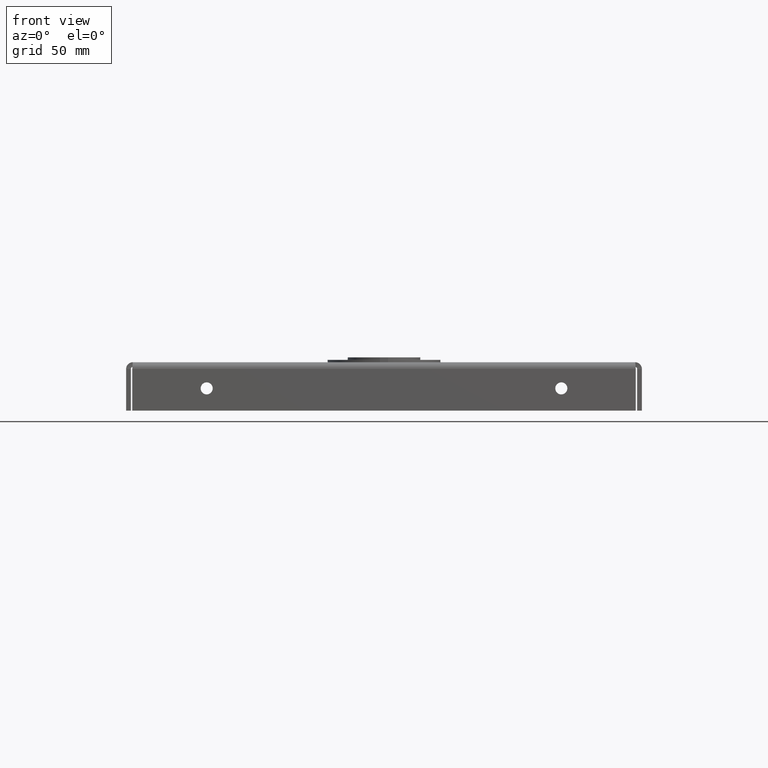
[diagram: clean part render]
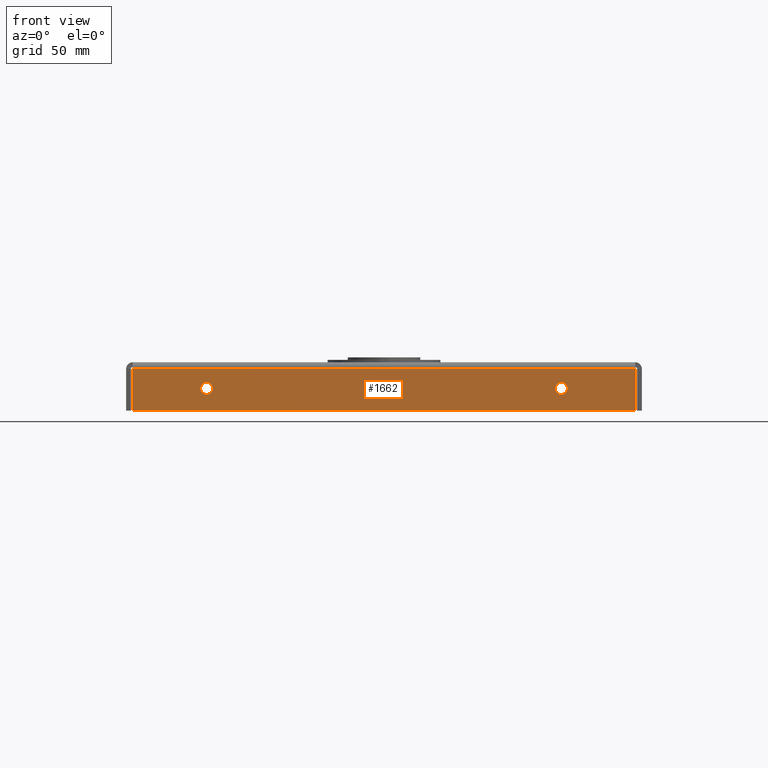
[diagram: same view with one face highlighted and labeled with its STEP entity id]
A machine part, front view. The second image highlights one B-rep face of the part: STEP entity #1662.
In plain terms, the highlighted planar face has unit normal (0, -1, 0).
Its self-contained STEP definition (entity closure, byte-faithful):
#53=FACE_BOUND('',#299,.T.);
#54=FACE_BOUND('',#300,.T.);
#93=CIRCLE('',#1783,0.09375);
#94=CIRCLE('',#1784,0.09375);
#182=FACE_OUTER_BOUND('',#298,.T.);
#298=EDGE_LOOP('',(#1290,#1291,#1292,#1293));
#299=EDGE_LOOP('',(#1294));
#300=EDGE_LOOP('',(#1295));
#467=LINE('',#2752,#638);
#468=LINE('',#2754,#639);
#469=LINE('',#2756,#640);
#470=LINE('',#2757,#641);
#638=VECTOR('',#2074,7.80780582617584);
#639=VECTOR('',#2075,0.64475);
#640=VECTOR('',#2076,7.80780582617584);
#641=VECTOR('',#2077,0.64475);
#801=VERTEX_POINT('',#2750);
#802=VERTEX_POINT('',#2751);
#803=VERTEX_POINT('',#2753);
#804=VERTEX_POINT('',#2755);
#805=VERTEX_POINT('',#2758);
#806=VERTEX_POINT('',#2760);
#985=EDGE_CURVE('',#801,#802,#467,.T.);
#986=EDGE_CURVE('',#803,#802,#468,.T.);
#987=EDGE_CURVE('',#804,#803,#469,.T.);
#988=EDGE_CURVE('',#801,#804,#470,.T.);
#989=EDGE_CURVE('',#805,#805,#93,.T.);
#990=EDGE_CURVE('',#806,#806,#94,.T.);
#1290=ORIENTED_EDGE('',*,*,#985,.T.);
#1291=ORIENTED_EDGE('',*,*,#986,.F.);
#1292=ORIENTED_EDGE('',*,*,#987,.F.);
#1293=ORIENTED_EDGE('',*,*,#988,.F.);
#1294=ORIENTED_EDGE('',*,*,#989,.T.);
#1295=ORIENTED_EDGE('',*,*,#990,.T.);
#1579=PLANE('',#1782);
#1662=ADVANCED_FACE('',(#182,#53,#54),#1579,.T.);
#1782=AXIS2_PLACEMENT_3D('',#2749,#2072,#2073);
#1783=AXIS2_PLACEMENT_3D('',#2759,#2078,#2079);
#1784=AXIS2_PLACEMENT_3D('',#2761,#2080,#2081);
#2072=DIRECTION('center_axis',(1.74303483178582E-16,-1.,5.39861319894603E-15));
#2073=DIRECTION('ref_axis',(1.,0.,-1.40998324127395E-16));
#2074=DIRECTION('',(-1.,-1.74303483178582E-16,-2.88267152689951E-33));
#2075=DIRECTION('',(-9.36772324949952E-31,5.39030285815812E-15,1.));
#2076=DIRECTION('',(-1.,-1.74838271594513E-16,-4.30375676727215E-18));
#2077=DIRECTION('',(9.36772324949952E-31,-5.39030285815812E-15,-1.));
#2078=DIRECTION('center_axis',(-1.74303483178582E-16,1.,-5.39861319894603E-15));
#2079=DIRECTION('ref_axis',(-1.,0.,-8.29972542437303E-37));
#2080=DIRECTION('center_axis',(-1.74303483178582E-16,1.,-5.39861319894603E-15));
#2081=DIRECTION('ref_axis',(-1.,0.,-8.29972542437303E-37));
#2749=CARTESIAN_POINT('Origin',(3.05297216940857E-16,-4.,-0.317646843152389));
#2750=CARTESIAN_POINT('',(3.90390291308792,-4.,-0.0312499999999995));
#2751=CARTESIAN_POINT('',(-3.90390291308792,-4.,-0.0312499999999995));
#2752=CARTESIAN_POINT('',(8.61186788515544E-16,-4.,-0.0312499999999989));
#2753=CARTESIAN_POINT('',(-3.90390291308792,-4.,-0.676));
#2754=CARTESIAN_POINT('',(-3.90390291308792,-4.,-0.0312499999999995));
#2755=CARTESIAN_POINT('',(3.90390291308792,-4.,-0.676));
#2756=CARTESIAN_POINT('',(3.90390291308792,-4.,-0.676));
#2757=CARTESIAN_POINT('',(3.90390291308792,-4.,-0.0312499999999995));
#2758=CARTESIAN_POINT('',(-2.65625000000001,-4.,-0.332250000000043));
#2759=CARTESIAN_POINT('Origin',(-2.75000000000001,-4.,-0.332250000000043));
#2760=CARTESIAN_POINT('',(2.84374999999999,-4.,-0.332250000000043));
#2761=CARTESIAN_POINT('Origin',(2.74999999999999,-4.,-0.332250000000043));